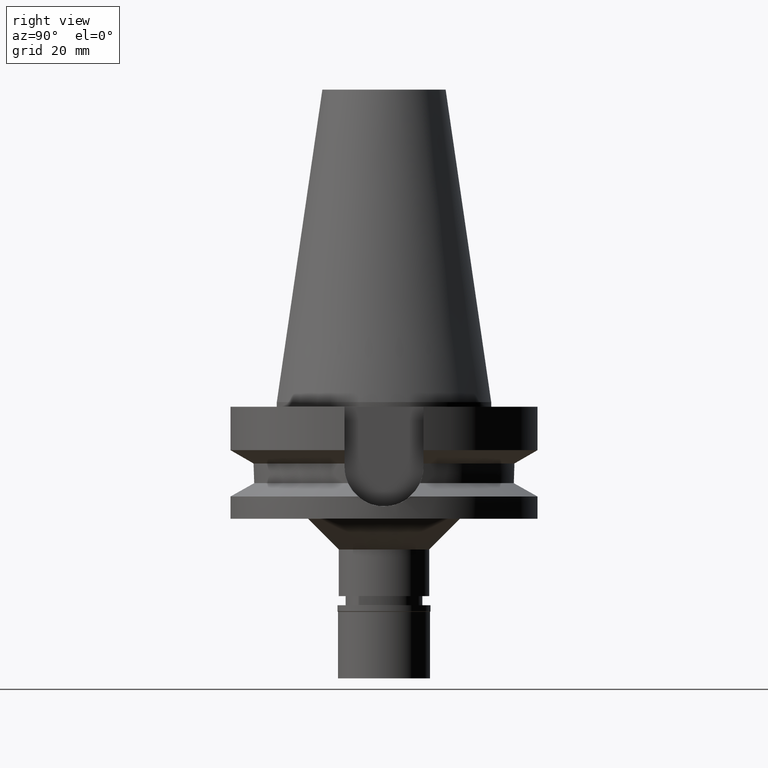
[diagram: clean part render]
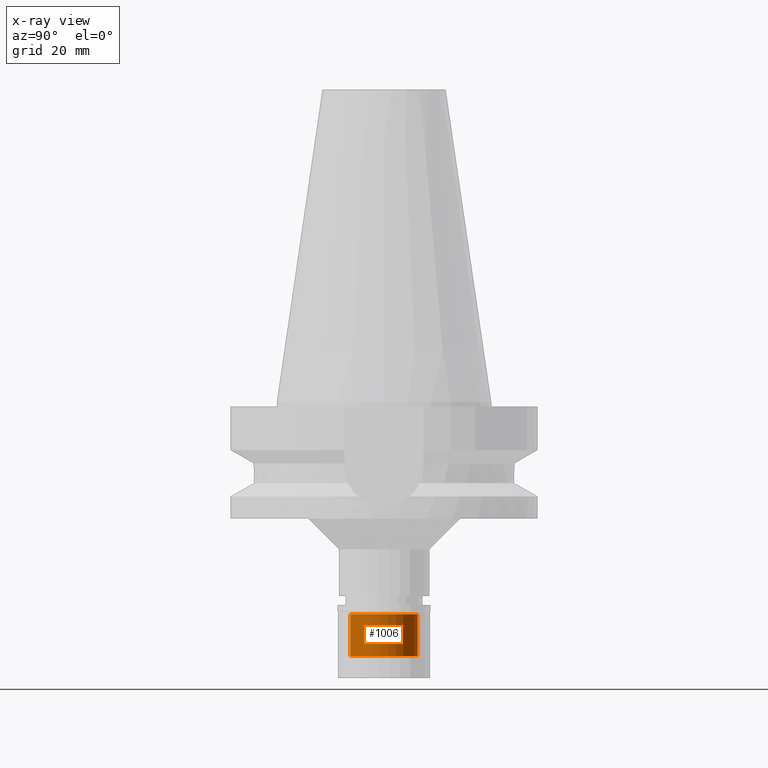
[diagram: x-ray — body ghosted, one internal face saturated and labeled with its STEP entity id]
A machine part, right view, then the same camera in x-ray: the body is ghosted and one INTERNAL B-rep face — a face not visible from any outside direction — is saturated and labeled: STEP entity #1006.
In plain terms, the highlighted cylindrical surface (edge-blend (fillet) strip) has radius 11 mm, axis along (0, 0, -1).
Its self-contained STEP definition (entity closure, byte-faithful):
#29 = AXIS2_PLACEMENT_3D ( 'NONE', #407, #1134, #3069 ) ;
#176 = ORIENTED_EDGE ( 'NONE', *, *, #1510, .T. ) ;
#192 = FACE_OUTER_BOUND ( 'NONE', #2148, .T. ) ;
#309 = CARTESIAN_POINT ( 'NONE',  ( 0.0000000000000000000, 0.0000000000000000000, -16.50000000000000000 ) ) ;
#321 = EDGE_CURVE ( 'NONE', #2283, #2753, #3012, .T. ) ;
#407 = CARTESIAN_POINT ( 'NONE',  ( 0.0000000000000000000, 0.0000000000000000000, -2.899999999999999911 ) ) ;
#436 = EDGE_CURVE ( 'NONE', #631, #2283, #1654, .T. ) ;
#614 = CYLINDRICAL_SURFACE ( 'NONE', #1871, 11.00000000000000000 ) ;
#631 = VERTEX_POINT ( 'NONE', #2146 ) ;
#710 = ORIENTED_EDGE ( 'NONE', *, *, #321, .T. ) ;
#846 = AXIS2_PLACEMENT_3D ( 'NONE', #309, #2033, #878 ) ;
#878 = DIRECTION ( 'NONE',  ( 0.0000000000000000000, 1.000000000000000000, 0.0000000000000000000 ) ) ;
#997 = ORIENTED_EDGE ( 'NONE', *, *, #436, .T. ) ;
#1006 = ADVANCED_FACE ( 'NONE', ( #192 ), #614, .F. ) ;
#1083 = EDGE_CURVE ( 'NONE', #631, #1751, #1111, .T. ) ;
#1100 = VECTOR ( 'NONE', #2812, 1000.000000000000000 ) ;
#1111 = LINE ( 'NONE', #2088, #1100 ) ;
#1134 = DIRECTION ( 'NONE',  ( 0.0000000000000000000, 0.0000000000000000000, 1.000000000000000000 ) ) ;
#1174 = DIRECTION ( 'NONE',  ( 0.0000000000000000000, -1.000000000000000000, 0.0000000000000000000 ) ) ;
#1412 = CARTESIAN_POINT ( 'NONE',  ( 0.0000000000000000000, 0.0000000000000000000, 0.0000000000000000000 ) ) ;
#1452 = CIRCLE ( 'NONE', #29, 11.00000000000000000 ) ;
#1478 = CARTESIAN_POINT ( 'NONE',  ( 0.0000000000000000000, -11.00000000000000000, -16.50000000000000000 ) ) ;
#1510 = EDGE_CURVE ( 'NONE', #2753, #1751, #1452, .T. ) ;
#1595 = DIRECTION ( 'NONE',  ( 0.0000000000000000000, 0.0000000000000000000, 1.000000000000000000 ) ) ;
#1654 = CIRCLE ( 'NONE', #846, 11.00000000000000000 ) ;
#1751 = VERTEX_POINT ( 'NONE', #2262 ) ;
#1871 = AXIS2_PLACEMENT_3D ( 'NONE', #1412, #3094, #1174 ) ;
#2033 = DIRECTION ( 'NONE',  ( 0.0000000000000000000, 0.0000000000000000000, -1.000000000000000000 ) ) ;
#2088 = CARTESIAN_POINT ( 'NONE',  ( 0.0000000000000000000, 11.00000000000000000, -16.50000000000000000 ) ) ;
#2146 = CARTESIAN_POINT ( 'NONE',  ( 0.0000000000000000000, 11.00000000000000000, -16.50000000000000000 ) ) ;
#2148 = EDGE_LOOP ( 'NONE', ( #997, #710, #176, #2161 ) ) ;
#2161 = ORIENTED_EDGE ( 'NONE', *, *, #1083, .F. ) ;
#2262 = CARTESIAN_POINT ( 'NONE',  ( 0.0000000000000000000, 11.00000000000000000, -2.899999999999999911 ) ) ;
#2283 = VERTEX_POINT ( 'NONE', #1478 ) ;
#2594 = CARTESIAN_POINT ( 'NONE',  ( 0.0000000000000000000, -11.00000000000000000, -2.899999999999999911 ) ) ;
#2753 = VERTEX_POINT ( 'NONE', #2594 ) ;
#2781 = CARTESIAN_POINT ( 'NONE',  ( 0.0000000000000000000, -11.00000000000000000, -16.50000000000000000 ) ) ;
#2812 = DIRECTION ( 'NONE',  ( 0.0000000000000000000, 0.0000000000000000000, 1.000000000000000000 ) ) ;
#3012 = LINE ( 'NONE', #2781, #3023 ) ;
#3023 = VECTOR ( 'NONE', #1595, 1000.000000000000000 ) ;
#3069 = DIRECTION ( 'NONE',  ( 0.0000000000000000000, -1.000000000000000000, 0.0000000000000000000 ) ) ;
#3094 = DIRECTION ( 'NONE',  ( 0.0000000000000000000, 0.0000000000000000000, -1.000000000000000000 ) ) ;